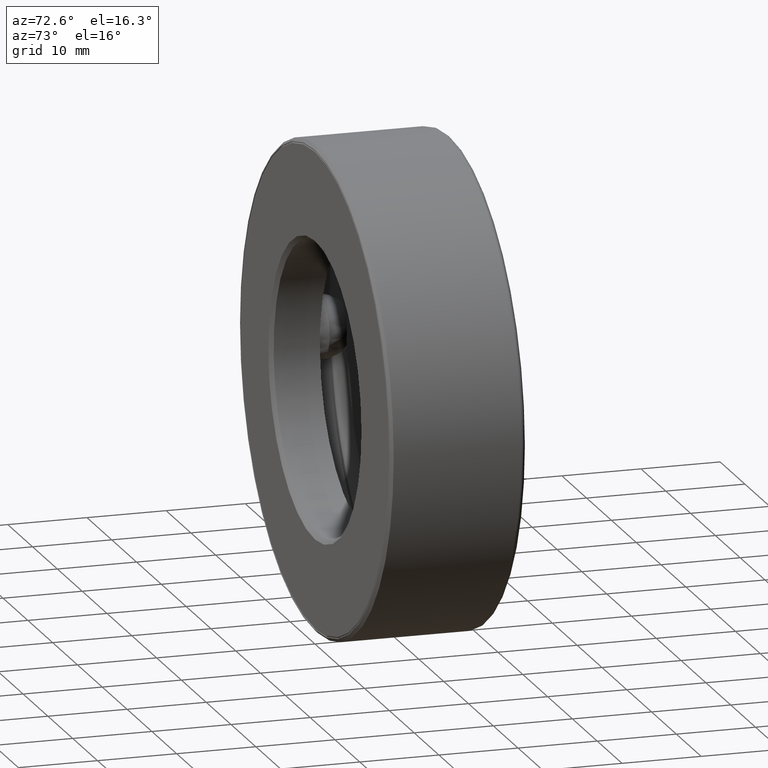
[diagram: clean part render]
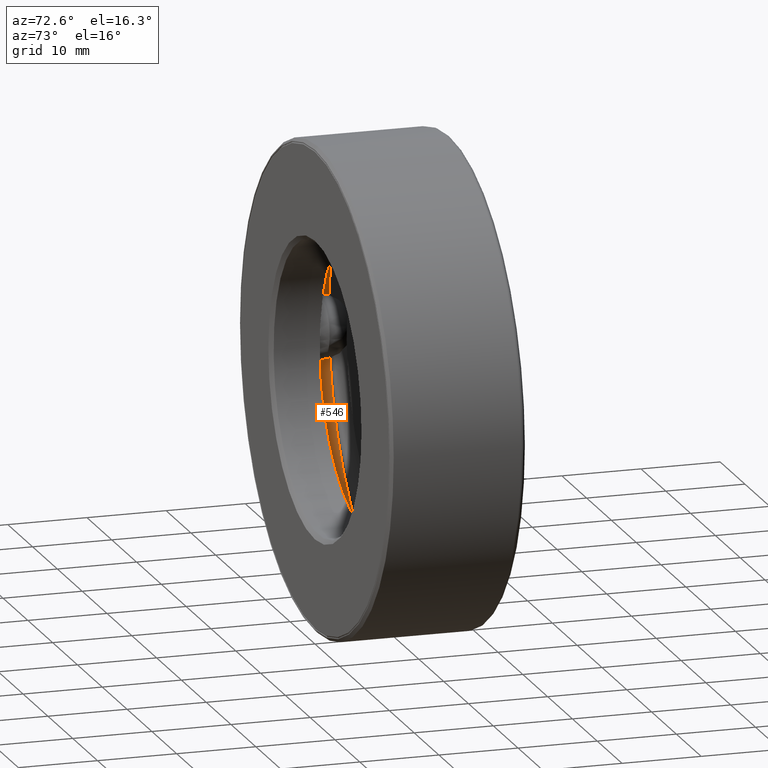
[diagram: same view with one face highlighted and labeled with its STEP entity id]
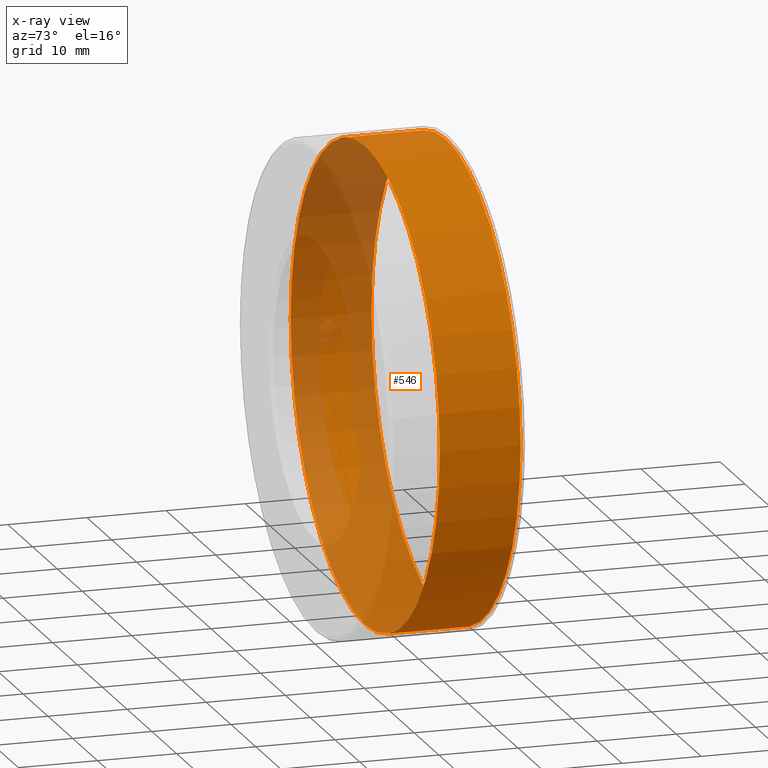
[diagram: x-ray of the same camera — body ghosted, the highlighted face saturated]
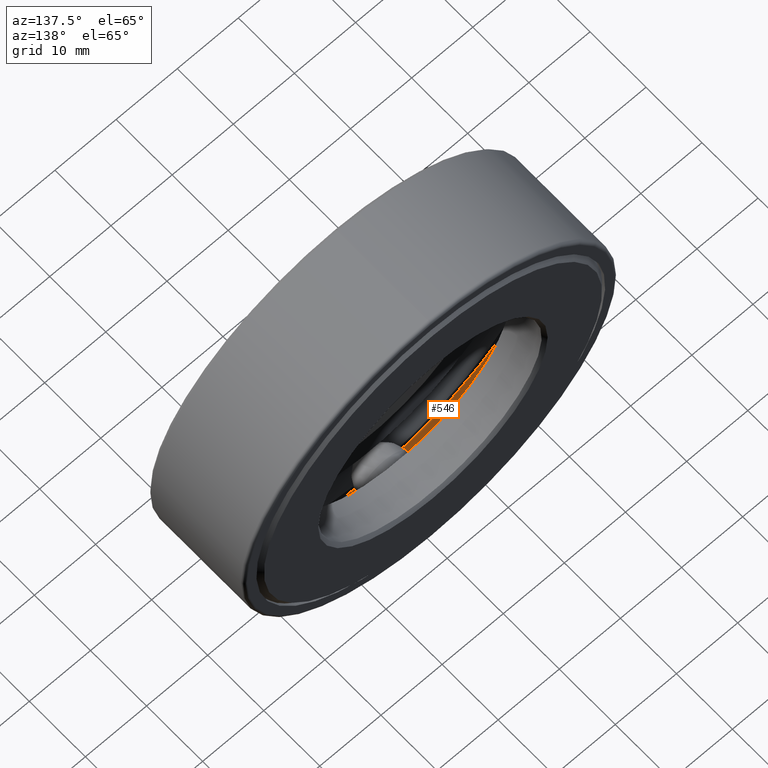
[diagram: same view with one face highlighted and labeled with its STEP entity id]
A machine part, auxiliary view. The second image highlights one B-rep face of the part: STEP entity #546.
The next image is the same camera in x-ray: the body ghosted, the highlighted face saturated — about 42% of this face is hidden behind the body in this view.
A second angle (auxiliary view) of the same face is appended — the face is thin or edge-on in the first view.
In plain terms, the highlighted cylindrical surface (bore or boss wall) has radius 30.0514 mm, axis along (-0, 1, -0).
Its self-contained STEP definition (entity closure, byte-faithful):
#45 = EDGE_LOOP ( 'NONE', ( #401 ) ) ;
#46 = EDGE_LOOP ( 'NONE', ( #101 ) ) ;
#56 = CIRCLE ( 'NONE', #467, 1.183124999999999800 ) ;
#79 = FACE_OUTER_BOUND ( 'NONE', #45, .T. ) ;
#84 = AXIS2_PLACEMENT_3D ( 'NONE', #548, #189, #425 ) ;
#101 = ORIENTED_EDGE ( 'NONE', *, *, #343, .T. ) ;
#135 = DIRECTION ( 'NONE',  ( 0.0000000000000000000, 0.0000000000000000000, 1.000000000000000000 ) ) ;
#177 = CARTESIAN_POINT ( 'NONE',  ( 0.0000000000000000000, 0.2499999999999998600, 0.0000000000000000000 ) ) ;
#186 = CIRCLE ( 'NONE', #191, 1.183125000000000000 ) ;
#189 = DIRECTION ( 'NONE',  ( -0.0000000000000000000, 1.000000000000000000, -0.0000000000000000000 ) ) ;
#191 = AXIS2_PLACEMENT_3D ( 'NONE', #500, #227, #135 ) ;
#227 = DIRECTION ( 'NONE',  ( -0.0000000000000000000, 1.000000000000000000, -0.0000000000000000000 ) ) ;
#241 = CARTESIAN_POINT ( 'NONE',  ( 0.0000000000000000000, 0.2499999999999998600, 1.183124999999999800 ) ) ;
#257 = DIRECTION ( 'NONE',  ( -0.0000000000000000000, 1.000000000000000000, -0.0000000000000000000 ) ) ;
#258 = FACE_OUTER_BOUND ( 'NONE', #46, .T. ) ;
#267 = CYLINDRICAL_SURFACE ( 'NONE', #84, 1.183125000000000000 ) ;
#315 = VERTEX_POINT ( 'NONE', #241 ) ;
#343 = EDGE_CURVE ( 'NONE', #351, #351, #186, .T. ) ;
#351 = VERTEX_POINT ( 'NONE', #514 ) ;
#401 = ORIENTED_EDGE ( 'NONE', *, *, #404, .F. ) ;
#404 = EDGE_CURVE ( 'NONE', #315, #315, #56, .T. ) ;
#425 = DIRECTION ( 'NONE',  ( 0.0000000000000000000, 0.0000000000000000000, 1.000000000000000000 ) ) ;
#467 = AXIS2_PLACEMENT_3D ( 'NONE', #177, #257, #584 ) ;
#500 = CARTESIAN_POINT ( 'NONE',  ( 0.0000000000000000000, 0.6524999999999997500, 0.0000000000000000000 ) ) ;
#514 = CARTESIAN_POINT ( 'NONE',  ( 0.0000000000000000000, 0.6524999999999997500, 1.183125000000000000 ) ) ;
#546 = ADVANCED_FACE ( 'NONE', ( #79, #258 ), #267, .F. ) ;
#548 = CARTESIAN_POINT ( 'NONE',  ( 0.0000000000000000000, 0.0000000000000000000, 0.0000000000000000000 ) ) ;
#584 = DIRECTION ( 'NONE',  ( 0.0000000000000000000, 0.0000000000000000000, 1.000000000000000000 ) ) ;